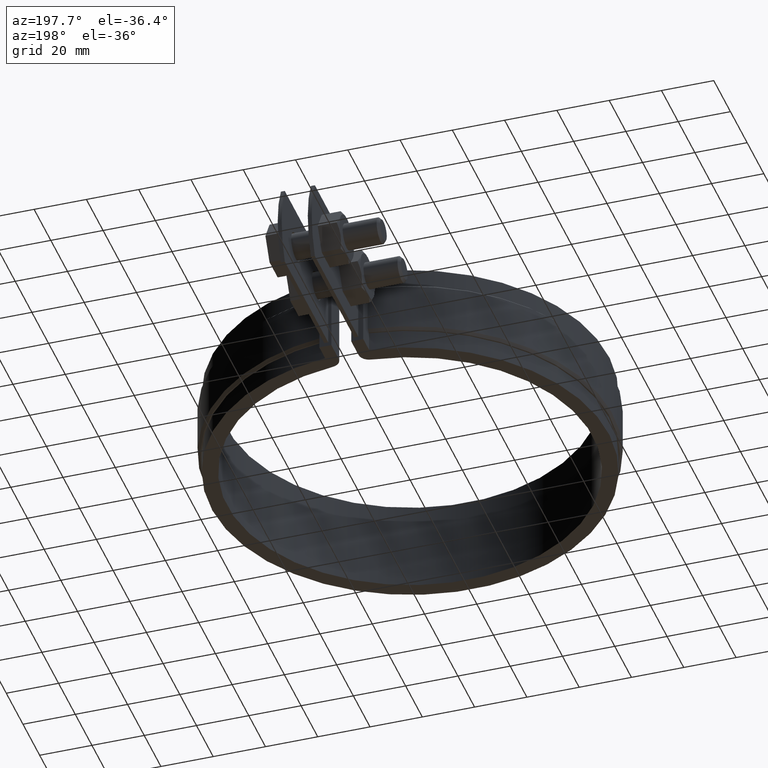
[diagram: clean part render]
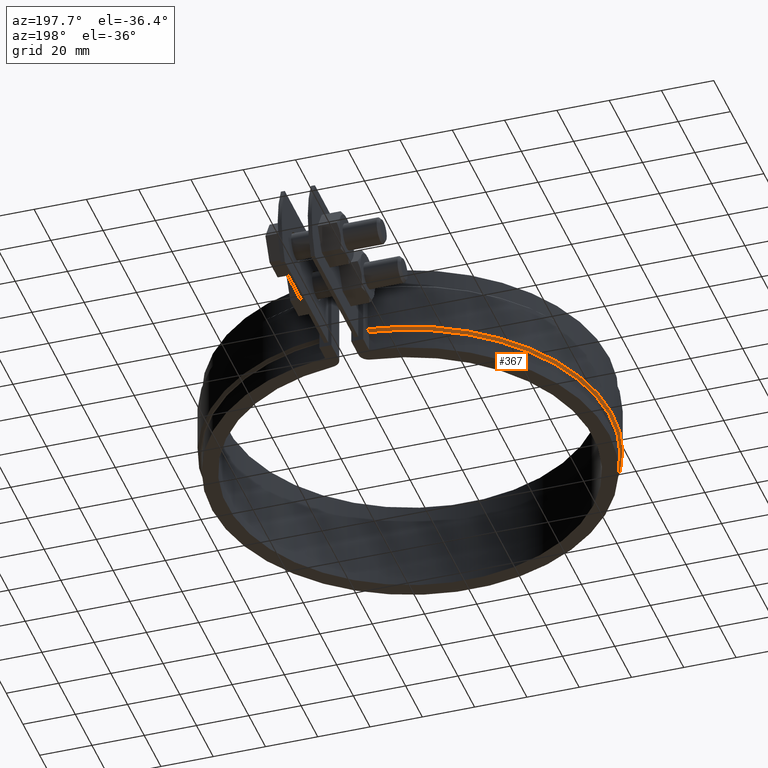
[diagram: same view with one face highlighted and labeled with its STEP entity id]
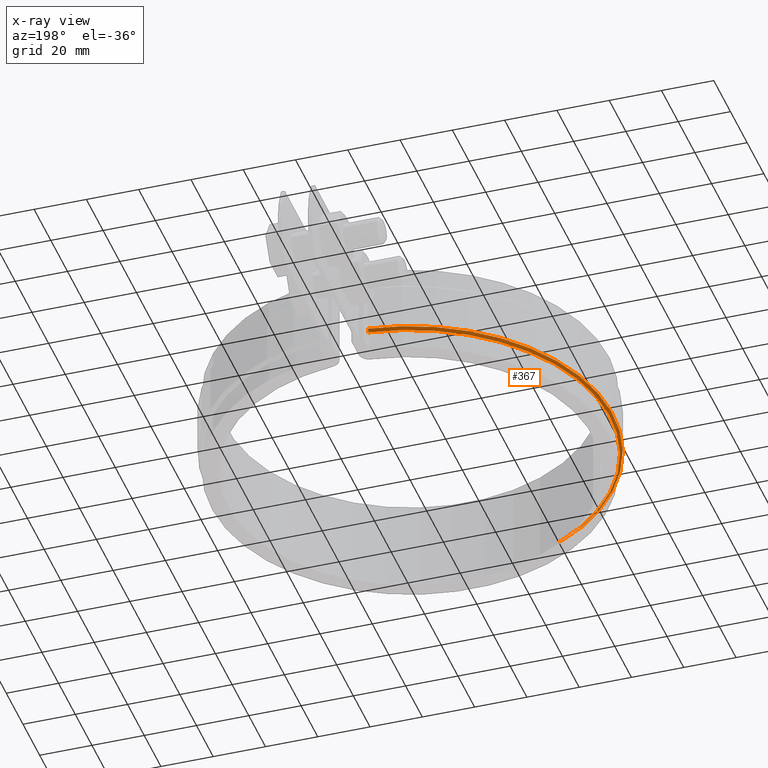
[diagram: x-ray of the same camera — body ghosted, the highlighted face saturated]
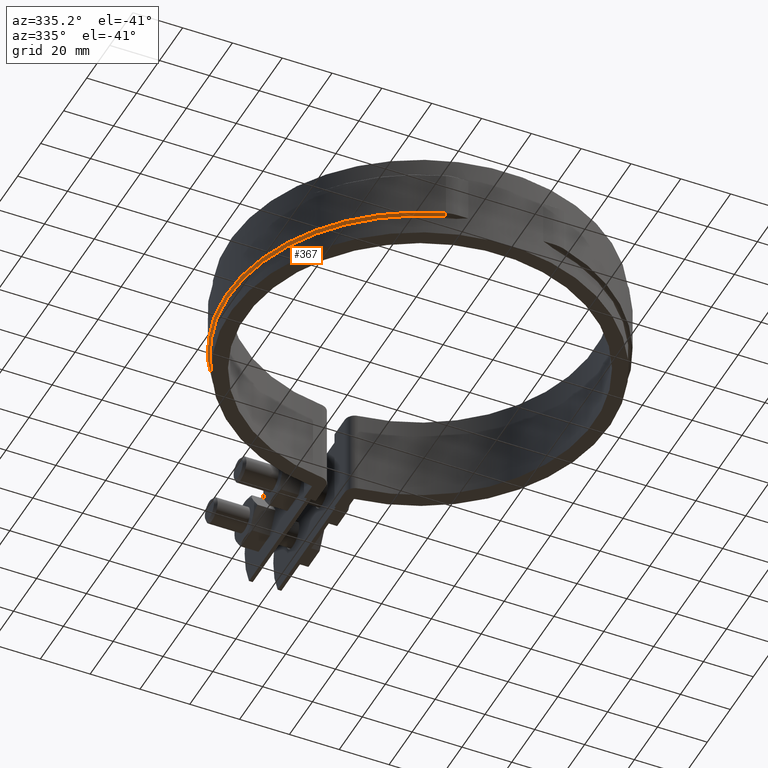
[diagram: same view with one face highlighted and labeled with its STEP entity id]
A machine part, auxiliary view. The second image highlights one B-rep face of the part: STEP entity #367.
The next image is the same camera in x-ray: the body ghosted, the highlighted face saturated — about 0% of this face is hidden behind the body in this view.
A second angle (auxiliary view) of the same face is appended — the face is thin or edge-on in the first view.
In plain terms, the highlighted conical surface has half-angle 45 deg.
Its self-contained STEP definition (entity closure, byte-faithful):
#367 = ADVANCED_FACE( '', ( #585 ), #586, .T. );
#585 = FACE_OUTER_BOUND( '', #1663, .T. );
#586 = CONICAL_SURFACE( '', #1664, 76.5000000000000, 0.785398163397441 );
#1663 = EDGE_LOOP( '', ( #3487, #3488, #3489, #3490 ) );
#1664 = AXIS2_PLACEMENT_3D( '', #3491, #3492, #3493 );
#3487 = ORIENTED_EDGE( '', *, *, #4798, .F. );
#3488 = ORIENTED_EDGE( '', *, *, #4822, .F. );
#3489 = ORIENTED_EDGE( '', *, *, #4823, .F. );
#3490 = ORIENTED_EDGE( '', *, *, #4824, .F. );
#3491 = CARTESIAN_POINT( '', ( 0.000000000000000, 0.000000000000000, -26.0000000000000 ) );
#3492 = DIRECTION( '', ( 0.000000000000000, 0.000000000000000, 1.00000000000000 ) );
#3493 = DIRECTION( '', ( 1.00000000000000, 0.000000000000000, 0.000000000000000 ) );
#4798 = EDGE_CURVE( '', #5349, #5352, #5353, .F. );
#4822 = EDGE_CURVE( '', #5390, #5349, #5391, .T. );
#4823 = EDGE_CURVE( '', #5392, #5390, #5393, .T. );
#4824 = EDGE_CURVE( '', #5352, #5392, #5394, .T. );
#5349 = VERTEX_POINT( '', #7793 );
#5352 = VERTEX_POINT( '', #7797 );
#5353 = B_SPLINE_CURVE_WITH_KNOTS( '', 3, ( #7798, #7799, #7800, #7801 ), .UNSPECIFIED., .F., .F., ( 4, 4 ), ( 706.997502694601, 706.998921160348 ), .UNSPECIFIED. );
#5390 = VERTEX_POINT( '', #7917 );
#5391 = CIRCLE( '', #7918, 76.5000000000000 );
#5392 = VERTEX_POINT( '', #7919 );
#5393 = LINE( '', #7920, #7921 );
#5394 = CIRCLE( '', #7922, 77.5000000000000 );
#7793 = CARTESIAN_POINT( '', ( -8.40000000000000, 76.0374249958532, -26.0000000000000 ) );
#7797 = CARTESIAN_POINT( '', ( -8.40000000000000, 77.0434293110061, -25.0000000000000 ) );
#7798 = CARTESIAN_POINT( '', ( -8.40000000000000, 77.0434293109788, -25.0000000000272 ) );
#7799 = CARTESIAN_POINT( '', ( -8.40000000000000, 76.7081074965680, -25.3333463549304 ) );
#7800 = CARTESIAN_POINT( '', ( -8.40000000000000, 76.3727728952687, -25.6666798594859 ) );
#7801 = CARTESIAN_POINT( '', ( -8.40000000000000, 76.0374249958888, -25.9999999999646 ) );
#7917 = CARTESIAN_POINT( '', ( -23.4164987989238, -72.8280000000000, -26.0000000000000 ) );
#7918 = AXIS2_PLACEMENT_3D( '', #8750, #8751, #8752 );
#7919 = CARTESIAN_POINT( '', ( -23.7225968224392, -73.7800000000000, -25.0000000000000 ) );
#7920 = CARTESIAN_POINT( '', ( -23.7225968224392, -73.7800000000000, -25.0000000000000 ) );
#7921 = VECTOR( '', #8753, 1000.00000000000 );
#7922 = AXIS2_PLACEMENT_3D( '', #8754, #8755, #8756 );
#8750 = CARTESIAN_POINT( '', ( 0.000000000000000, 0.000000000000000, -26.0000000000000 ) );
#8751 = DIRECTION( '', ( 0.000000000000000, 0.000000000000000, -1.00000000000000 ) );
#8752 = DIRECTION( '', ( -1.00000000000000, 0.000000000000000, 0.000000000000000 ) );
#8753 = DIRECTION( '', ( 0.216443988135502, 0.673165655689590, -0.707106781186549 ) );
#8754 = CARTESIAN_POINT( '', ( 0.000000000000000, 0.000000000000000, -25.0000000000000 ) );
#8755 = DIRECTION( '', ( 0.000000000000000, 0.000000000000000, 1.00000000000000 ) );
#8756 = DIRECTION( '', ( 1.00000000000000, 0.000000000000000, 0.000000000000000 ) );